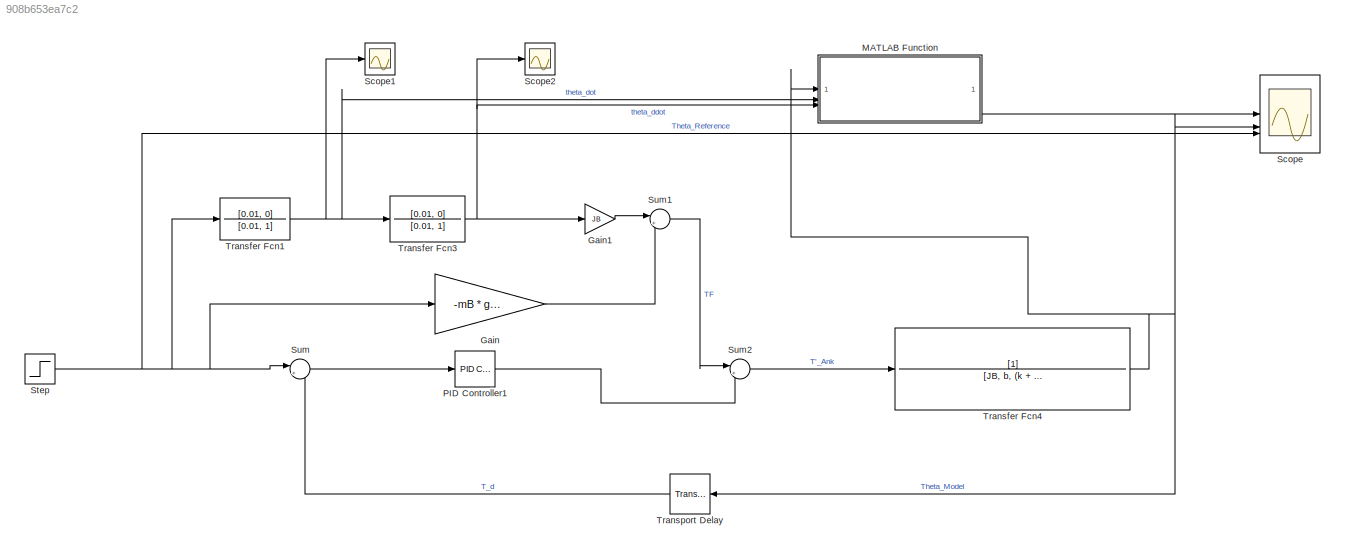
MODEL slx_908b653ea7c2
KIND model
CONFIG AbsTol = auto
CONFIG EnableMultiTasking = off
CONFIG FixedStep = auto
CONFIG MaxStep = auto
CONFIG MinStep = auto
CONFIG RelTol = 1e-3
CONFIG SampleTimeConstraint = Unconstrained
CONFIG SolverName = VariableStepAuto
CONFIG StartTime = 0.0
CONFIG StopTime = 2000
BLOCK [Gain] Gain
  Gain = -mB * g * L_COM
BLOCK [Gain] Gain1
  Gain = JB
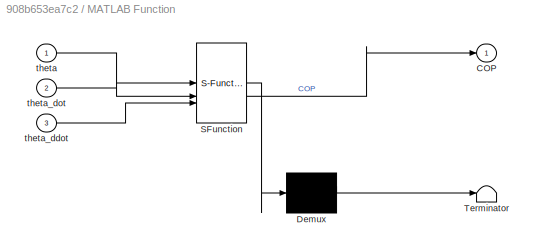
BLOCK [SubSystem] MATLAB Function
  ErrorFcn = Stateflow.Translate.translate
  PermitHierarchicalResolution = ExplicitOnly
  SFBlockType = MATLAB Function
  TreatAsAtomicUnit = on
BLOCK [Demux] MATLAB Function/ Demux 
  Outputs = 1
BLOCK [S-Function] MATLAB Function/ SFunction 
  EnableBusSupport = on
  FunctionName = sf_sfun
  PortCounts = [3 2]
  SFcnIsStateOwnerBlock = off
  SFunctionDeploymentMode = off
  Tag = Stateflow S-Function 2
BLOCK [Terminator] MATLAB Function/ Terminator 
BLOCK [Outport] MATLAB Function/COP
BLOCK [Inport] MATLAB Function/theta
BLOCK [Inport] MATLAB Function/theta_ddot
  Port = 3
BLOCK [Inport] MATLAB Function/theta_dot
  Port = 2
BLOCK [Reference] PID Controller1  REF=slpidlib/PID Controller
  LibrarySourceBlock = simulink/Continuous/PID Controller
  SourceBlock = slpidlib/PID Controller
  SourceType = PID 1dof
BLOCK [Scope] Scope
  Floating = off
  NumInputPorts = 3
  ScopeSpecificationString = Simulink.scopes.TimeScopeBlockCfg('CurrentConfiguration', extmgr.ConfigurationSet(extmgr.Configuration('Core','General UI',true),extmgr.Configuration('Core','Source UI',true),extmgr.Configuration('Sources','WiredSimulink',true),extmgr.Configuration('Visuals','Time Domain',true,'SerializedDisplays',{struct('MinYLimReal','-2.32069','MaxYLimReal','1.36897','YLabelReal','','MinYLimMag','0.00000','MaxY...<+1622ch>
BLOCK [Scope] Scope1
  Floating = off
  NumInputPorts = 1
  ScopeSpecificationString = Simulink.scopes.TimeScopeBlockCfg('CurrentConfiguration', extmgr.ConfigurationSet(extmgr.Configuration('Core','General UI',true),extmgr.Configuration('Core','Source UI',true),extmgr.Configuration('Sources','WiredSimulink',true,'DataLoggingVariableName','ScopeData1'),extmgr.Configuration('Visuals','Time Domain',true,'SerializedDisplays',{struct('MinYLimReal','-3.67028','MaxYLimReal','0.41451','YLab...<+1457ch>
BLOCK [Scope] Scope2
  Floating = off
  NumInputPorts = 1
  ScopeSpecificationString = Simulink.scopes.TimeScopeBlockCfg('CurrentConfiguration', extmgr.ConfigurationSet(extmgr.Configuration('Core','General UI',true),extmgr.Configuration('Core','Source UI',true),extmgr.Configuration('Sources','WiredSimulink',true,'DataLoggingVariableName','ScopeData2'),extmgr.Configuration('Visuals','Time Domain',true,'SerializedDisplays',{struct('MinYLimReal','-0.27707','MaxYLimReal','1.1419','YLabe...<+1454ch>
BLOCK [Step] Step
  SampleTime = 0
BLOCK [Sum] Sum
  Inputs = |+-
BLOCK [Sum] Sum1
  Inputs = |++
BLOCK [Sum] Sum2
  Inputs = |++
BLOCK [TransferFcn] Transfer Fcn1
  Denominator = [0.01, 1]
  Numerator = [0.01, 0]
BLOCK [TransferFcn] Transfer Fcn3
  Denominator = [0.01, 1]
  Numerator = [0.01, 0]
BLOCK [TransferFcn] Transfer Fcn4
  Denominator = [JB, b, (k + mB * g * L_COM)]
BLOCK [TransportDelay] Transport Delay
  DelayTime = 0.171
LINE Gain1:1 -> Sum1:1
LINE Gain:1 -> Sum1:2
LINE MATLAB Function:1 -> Scope:1
LINE PID Controller1:1 -> Sum2:2
NET Step:1 -> Gain:1, Scope:3, Sum:1, Transfer Fcn1:1
LINE Sum1:1 -> Sum2:1
LINE Sum2:1 -> Transfer Fcn4:1
LINE Sum:1 -> PID Controller1:1
NET Transfer Fcn1:1 -> MATLAB Function:2, Scope1:1, Transfer Fcn3:1
NET Transfer Fcn3:1 -> Gain1:1, MATLAB Function:3, Scope2:1
NET Transfer Fcn4:1 -> MATLAB Function:1, Scope:2, Transport Delay:1
LINE Transport Delay:1 -> Sum:2
note: NET lines group one-source signal fan-out (src -> all destinations, sorted); 1:1 wires keep LINE
CHART MATLAB Function states=1 transitions=1
  STATE_LABEL 'eML_blk_kernel()'
  STATE_LABEL "SCRIPT:\nfunction COP = calculate_COP(theta, theta_dot, theta_ddot)\n% Calculate the Center of Pressure (COP) based on the body lean angle and its derivatives\n\n% Define constants (or pass them as inputs)\nmB = 70;          % Mass of the body (kg)\nmF = 2;           % Mass of the feet (kg)\ng = 9.81;         % Acceleration due to gravity (m/s^2)\nL_COM = 0.9;      % Distance from ankle to body's center o...<+659ch>"
CHART  states=0 transitions=0
